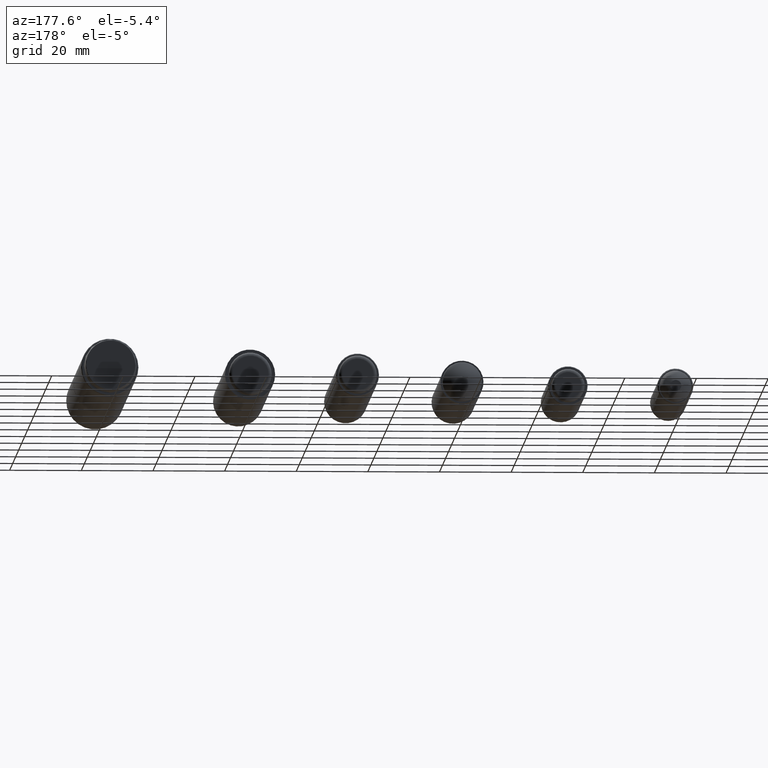
[diagram: clean part render]
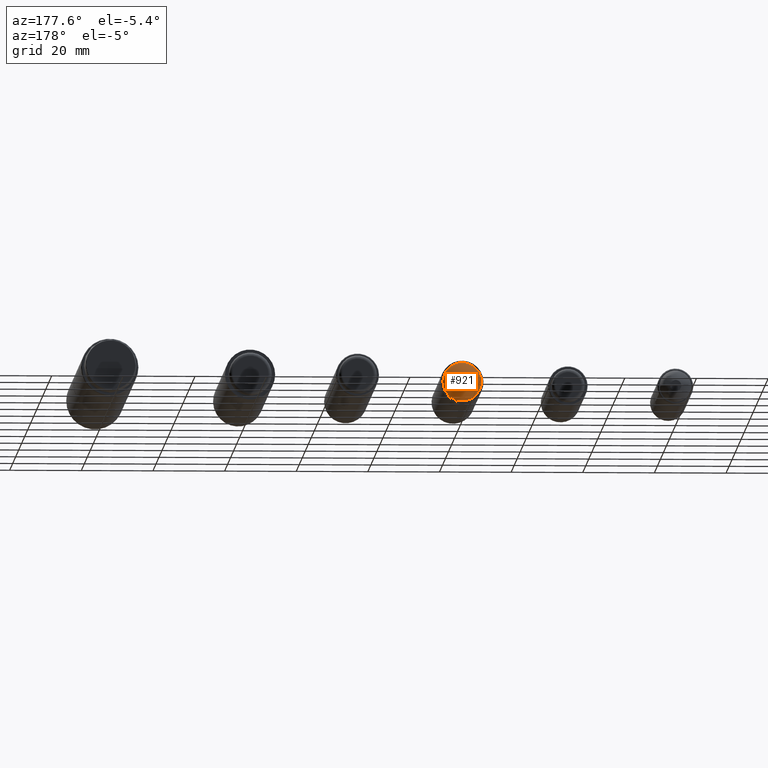
[diagram: same view with one face highlighted and labeled with its STEP entity id]
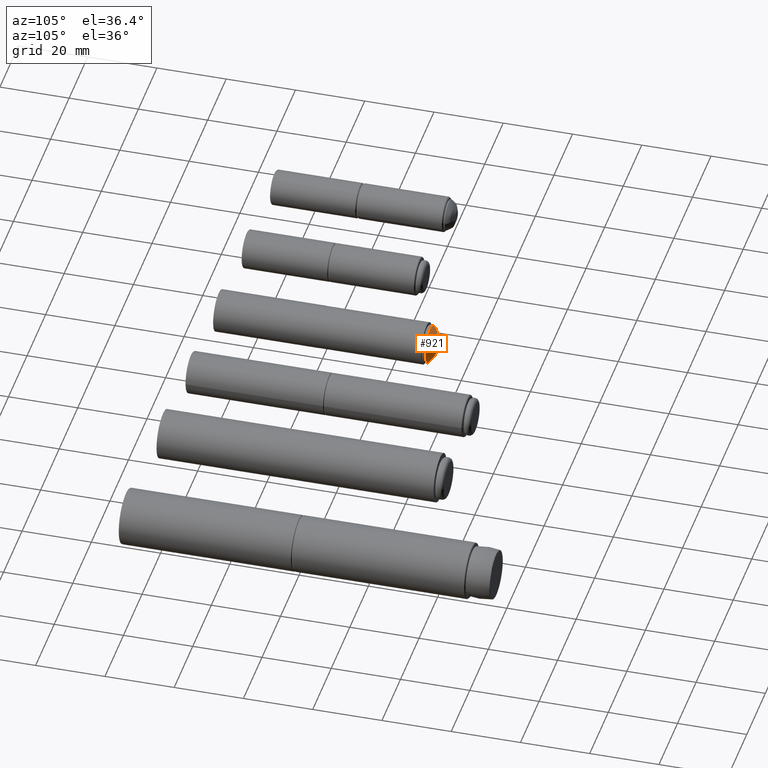
[diagram: same view with one face highlighted and labeled with its STEP entity id]
A machine part, auxiliary view. The second image highlights one B-rep face of the part: STEP entity #921.
A second angle (auxiliary view) of the same face is appended — the face is thin or edge-on in the first view.
In plain terms, the highlighted spherical surface has radius 7.3 mm.
Its self-contained STEP definition (entity closure, byte-faithful):
#11=SPHERICAL_SURFACE('',#1053,7.29999999999999);
#306=FACE_OUTER_BOUND('',#409,.T.);
#409=EDGE_LOOP('',(#778));
#522=CIRCLE('',#1052,5.36764705882353);
#596=VERTEX_POINT('',#1688);
#671=EDGE_CURVE('',#596,#596,#522,.T.);
#778=ORIENTED_EDGE('',*,*,#671,.F.);
#921=ADVANCED_FACE('',(#306),#11,.T.);
#1052=AXIS2_PLACEMENT_3D('',#1689,#1317,#1318);
#1053=AXIS2_PLACEMENT_3D('',#1690,#1319,#1320);
#1317=DIRECTION('center_axis',(3.93000290999105E-16,-1.,0.));
#1318=DIRECTION('ref_axis',(1.,3.9110129276568E-16,1.22464679914735E-16));
#1319=DIRECTION('center_axis',(6.12323399573677E-17,0.,1.));
#1320=DIRECTION('ref_axis',(1.,0.,0.));
#1688=CARTESIAN_POINT('',(-5.36764705882353,1.14756152583302,-1.31469435790819E-15));
#1689=CARTESIAN_POINT('Origin',(-7.94811673482913E-17,1.14756152583303,
0.));
#1690=CARTESIAN_POINT('Origin',(-3.55914640311454E-15,-3.79999999999998,
0.));